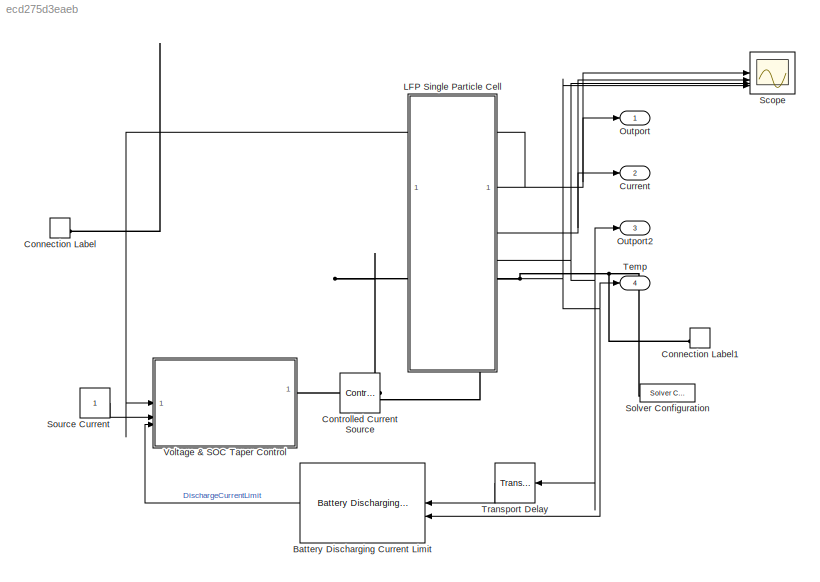
MODEL slx_ecd275d3eaeb
KIND model
CONFIG AbsTol = 1e-6
CONFIG EnableMultiTasking = off
CONFIG FixedStep = 1
CONFIG MaxStep = 1
CONFIG MinStep = auto
CONFIG RelTol = 1e-4
CONFIG SampleTimeConstraint = Unconstrained
CONFIG SolverName = ode15s
CONFIG StartTime = 0.0
CONFIG StopTime = 3600
BLOCK [Reference] Battery Discharging Current Limit  REF=BatteryCurrentManagement/Battery Discharging
Current Limit
  LibrarySourceBlock = batt_sl_lib/Current Management/Battery Discharging\nCurrent Limit
  SourceBlock = BatteryCurrentManagement/Battery Discharging\nCurrent Limit
  SourceType = Battery Discharging Current Limit
BLOCK [ConnectionLabel] Connection Label
  Label = p
BLOCK [ConnectionLabel] Connection Label1
  Label = n
BLOCK [Reference] Controlled Current Source  REF=fl_lib/Electrical/Electrical Sources/Controlled Current
Source
  SourceBlock = fl_lib/Electrical/Electrical Sources/Controlled Current\nSource
  SourceType = Controlled Current\nSource
BLOCK [Outport] Current
  Port = 2
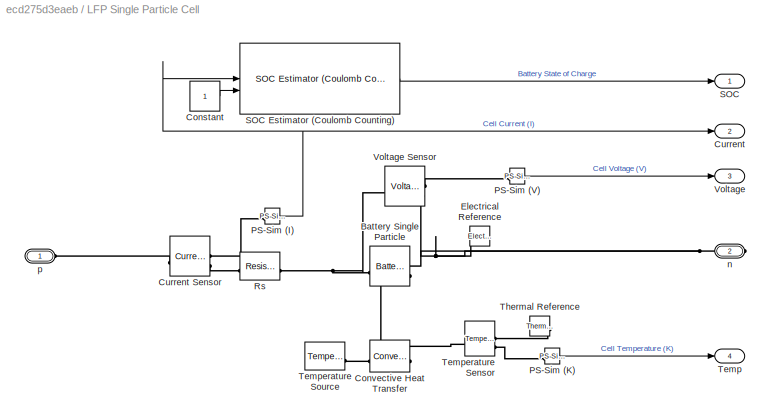
BLOCK [SubSystem] LFP Single Particle Cell
BLOCK [Reference] LFP Single Particle Cell/Battery Single Particle  REF=batt_lib/Cells/Electrochemical/Battery Single
Particle
  NameLocation = top
  SourceBlock = batt_lib/Cells/Electrochemical/Battery Single\nParticle
  SourceType = Battery Single\nParticle
BLOCK [Constant] LFP Single Particle Cell/Constant
BLOCK [Reference] LFP Single Particle Cell/Convective Heat Transfer  REF=fl_lib/Thermal/Thermal Elements/Convective Heat
Transfer
  NameLocation = top
  SourceBlock = fl_lib/Thermal/Thermal Elements/Convective Heat\nTransfer
  SourceType = Convective Heat\nTransfer
BLOCK [Outport] LFP Single Particle Cell/Current
  Port = 2
BLOCK [Reference] LFP Single Particle Cell/Current Sensor  REF=fl_lib/Electrical/Electrical Sensors/Current Sensor
  SourceBlock = fl_lib/Electrical/Electrical Sensors/Current Sensor
  SourceType = Current Sensor
BLOCK [Reference] LFP Single Particle Cell/Electrical Reference  REF=fl_lib/Electrical/Electrical Elements/Electrical Reference
  NameLocation = top
  SourceBlock = fl_lib/Electrical/Electrical Elements/Electrical Reference
  SourceType = Electrical Reference
BLOCK [Reference] LFP Single Particle Cell/PS-Sim (I)  REF=nesl_utility/PS-Simulink
Converter
  SourceBlock = nesl_utility/PS-Simulink\nConverter
  SourceType = PS-Simulink\nConverter
BLOCK [Reference] LFP Single Particle Cell/PS-Sim (K)  REF=nesl_utility/PS-Simulink
Converter
  SourceBlock = nesl_utility/PS-Simulink\nConverter
  SourceType = PS-Simulink\nConverter
BLOCK [Reference] LFP Single Particle Cell/PS-Sim (V)  REF=nesl_utility/PS-Simulink
Converter
  SourceBlock = nesl_utility/PS-Simulink\nConverter
  SourceType = PS-Simulink\nConverter
BLOCK [Reference] LFP Single Particle Cell/Rs  REF=fl_lib/Electrical/Electrical Elements/Resistor
  SourceBlock = fl_lib/Electrical/Electrical Elements/Resistor
  SourceType = Resistor
BLOCK [Outport] LFP Single Particle Cell/SOC
BLOCK [Reference] LFP Single Particle Cell/SOC Estimator (Coulomb Counting)  REF=BatteryEstimators/SOC Estimator
(Coulomb Counting)
  LibrarySourceBlock = batt_sl_lib/Estimators/SOC Estimator\n(Coulomb Counting)
  SourceBlock = BatteryEstimators/SOC Estimator\n(Coulomb Counting)
  SourceType = SOC Estimator (Coulomb Counting)
BLOCK [Outport] LFP Single Particle Cell/Temp
  Port = 4
BLOCK [Reference] LFP Single Particle Cell/Temperature Sensor  REF=fl_lib/Thermal/Thermal Sensors/Temperature Sensor
  SourceBlock = fl_lib/Thermal/Thermal Sensors/Temperature Sensor
  SourceType = Temperature Sensor
BLOCK [Reference] LFP Single Particle Cell/Temperature Source  REF=fl_lib/Thermal/Thermal Sources/Temperature Source
  SourceBlock = fl_lib/Thermal/Thermal Sources/Temperature Source
  SourceType = Temperature Source
BLOCK [Reference] LFP Single Particle Cell/Thermal Reference  REF=fl_lib/Thermal/Thermal Elements/Thermal Reference
  NameLocation = top
  SourceBlock = fl_lib/Thermal/Thermal Elements/Thermal Reference
  SourceType = Thermal Reference
BLOCK [Outport] LFP Single Particle Cell/Voltage
  Port = 3
BLOCK [Reference] LFP Single Particle Cell/Voltage Sensor  REF=fl_lib/Electrical/Electrical Sensors/Voltage Sensor
  NameLocation = top
  SourceBlock = fl_lib/Electrical/Electrical Sensors/Voltage Sensor
  SourceType = Voltage Sensor
BLOCK [PMIOPort] LFP Single Particle Cell/n
  Port = 2
  Side = Right
BLOCK [PMIOPort] LFP Single Particle Cell/p
  Side = Left
BLOCK [Outport] Outport
BLOCK [Outport] Outport2
  Port = 3
BLOCK [Scope] Scope
  Floating = off
  NumInputPorts = 4
  ScopeSpecificationString = Simulink.scopes.TimeScopeBlockCfg('CurrentConfiguration', extmgr.ConfigurationSet(extmgr.Configuration('Core','General UI',true,'FigureColor',[1 1 1]),extmgr.Configuration('Core','Source UI',true),extmgr.Configuration('Sources','WiredSimulink',true,'DataLoggingDecimateData',true,'DataLoggingDecimation','1','SampleTime','1'),extmgr.Configuration('Visuals','Time Domain',true,'SerializedDisplays',{st...<+4251ch>
BLOCK [Reference] Solver Configuration  REF=nesl_utility/Solver
Configuration
  SourceBlock = nesl_utility/Solver\nConfiguration
  SourceType = Solver\nConfiguration
BLOCK [Constant] Source Current
BLOCK [Outport] Temp
  Port = 4
BLOCK [TransportDelay] Transport Delay
  DelayTime = 1e-6
  TransDelayFeedthrough = on
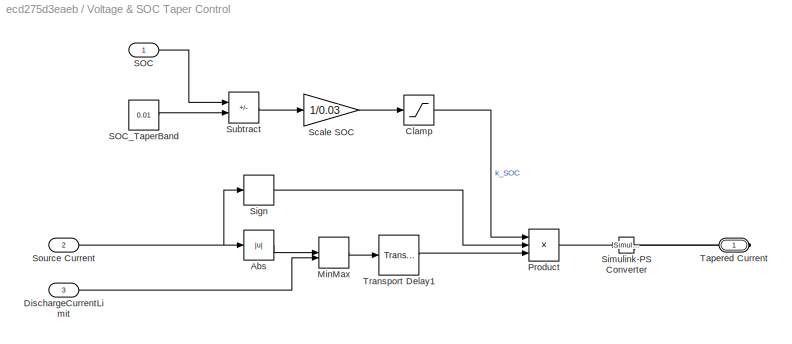
BLOCK [SubSystem] Voltage & SOC Taper Control
BLOCK [Abs] Voltage & SOC Taper Control/Abs
  SaturateOnIntegerOverflow = off
BLOCK [Saturate] Voltage & SOC Taper Control/Clamp
  LowerLimit = 0
  UpperLimit = 1
BLOCK [Inport] Voltage & SOC Taper Control/DischargeCurrentLimit
  Port = 3
BLOCK [MinMax] Voltage & SOC Taper Control/MinMax
  Function = max
  Inputs = 2
BLOCK [Product] Voltage & SOC Taper Control/Product
  Inputs = 3
BLOCK [Inport] Voltage & SOC Taper Control/SOC
BLOCK [Constant] Voltage & SOC Taper Control/SOC_TaperBand
  Value = 0.01
BLOCK [Gain] Voltage & SOC Taper Control/Scale SOC
  Gain = 1/0.03
BLOCK [Signum] Voltage & SOC Taper Control/Sign
BLOCK [Reference] Voltage & SOC Taper Control/Simulink-PS Converter  REF=nesl_utility/Simulink-PS
Converter
  SourceBlock = nesl_utility/Simulink-PS\nConverter
  SourceType = Simulink-PS\nConverter
BLOCK [Inport] Voltage & SOC Taper Control/Source Current
  Port = 2
BLOCK [Sum] Voltage & SOC Taper Control/Subtract
  IconShape = rectangular
  Inputs = +-
BLOCK [PMIOPort] Voltage & SOC Taper Control/Tapered Current
  Side = Right
BLOCK [TransportDelay] Voltage & SOC Taper Control/Transport Delay1
  DelayTime = 1e-6
  TransDelayFeedthrough = on
LINE Battery Discharging Current Limit:1 -> Voltage & SOC Taper Control:3
LINE LFP Single Particle Cell/Constant:1 -> LFP Single Particle Cell/SOC Estimator (Coulomb Counting):2
NET LFP Single Particle Cell/PS-Sim (I):1 -> LFP Single Particle Cell/Current:1, LFP Single Particle Cell/SOC Estimator (Coulomb Counting):1
LINE LFP Single Particle Cell/PS-Sim (K):1 -> LFP Single Particle Cell/Temp:1
LINE LFP Single Particle Cell/PS-Sim (V):1 -> LFP Single Particle Cell/Voltage:1
LINE LFP Single Particle Cell/SOC Estimator (Coulomb Counting):1 -> LFP Single Particle Cell/SOC:1
NET LFP Single Particle Cell:1 -> Outport:1, Scope:1, Voltage & SOC Taper Control:1
NET LFP Single Particle Cell:2 -> Current:1, Scope:2
NET LFP Single Particle Cell:3 -> Outport2:1, Scope:3, Transport Delay:1
NET LFP Single Particle Cell:4 -> Battery Discharging Current Limit:2, Scope:4, Temp:1
LINE Source Current:1 -> Voltage & SOC Taper Control:2
LINE Transport Delay:1 -> Battery Discharging Current Limit:1
LINE Voltage & SOC Taper Control/Abs:1 -> Voltage & SOC Taper Control/MinMax:1
LINE Voltage & SOC Taper Control/Clamp:1 -> Voltage & SOC Taper Control/Product:1
LINE Voltage & SOC Taper Control/DischargeCurrentLimit:1 -> Voltage & SOC Taper Control/MinMax:2
LINE Voltage & SOC Taper Control/MinMax:1 -> Voltage & SOC Taper Control/Transport Delay1:1
LINE Voltage & SOC Taper Control/Product:1 -> Voltage & SOC Taper Control/Simulink-PS Converter:1
LINE Voltage & SOC Taper Control/SOC:1 -> Voltage & SOC Taper Control/Subtract:1
LINE Voltage & SOC Taper Control/SOC_TaperBand:1 -> Voltage & SOC Taper Control/Subtract:2
LINE Voltage & SOC Taper Control/Scale SOC:1 -> Voltage & SOC Taper Control/Clamp:1
LINE Voltage & SOC Taper Control/Sign:1 -> Voltage & SOC Taper Control/Product:2
NET Voltage & SOC Taper Control/Source Current:1 -> Voltage & SOC Taper Control/Abs:1, Voltage & SOC Taper Control/Sign:1
LINE Voltage & SOC Taper Control/Subtract:1 -> Voltage & SOC Taper Control/Scale SOC:1
LINE Voltage & SOC Taper Control/Transport Delay1:1 -> Voltage & SOC Taper Control/Product:3
PNET net1: Connection Label1:LConn1 -- Controlled Current Source:LConn1 -- LFP Single Particle Cell:RConn1 -- Solver Configuration:RConn1
PNET net2: Connection Label:LConn1 -- Controlled Current Source:RConn2 -- LFP Single Particle Cell:LConn1
PLINE Controlled Current Source:RConn1 -- Voltage & SOC Taper Control:RConn1
PNET net3: LFP Single Particle Cell/Battery Single Particle:LConn1 -- LFP Single Particle Cell/Rs:LConn1 -- LFP Single Particle Cell/Voltage Sensor:LConn1
PNET net4: LFP Single Particle Cell/Battery Single Particle:RConn1 -- LFP Single Particle Cell/Electrical Reference:LConn1 -- LFP Single Particle Cell/Voltage Sensor:RConn2 -- LFP Single Particle Cell/n:RConn1
PNET net5: LFP Single Particle Cell/Battery Single Particle:RConn2 -- LFP Single Particle Cell/Convective Heat Transfer:LConn1 -- LFP Single Particle Cell/Temperature Sensor:LConn1
PLINE LFP Single Particle Cell/Convective Heat Transfer:RConn1 -- LFP Single Particle Cell/Temperature Source:LConn1
PLINE LFP Single Particle Cell/Current Sensor:LConn1 -- LFP Single Particle Cell/p:RConn1
PLINE LFP Single Particle Cell/Current Sensor:RConn1 -- LFP Single Particle Cell/PS-Sim (I):LConn1
PLINE LFP Single Particle Cell/Current Sensor:RConn2 -- LFP Single Particle Cell/Rs:RConn1
PLINE LFP Single Particle Cell/PS-Sim (K):LConn1 -- LFP Single Particle Cell/Temperature Sensor:RConn2
PLINE LFP Single Particle Cell/PS-Sim (V):LConn1 -- LFP Single Particle Cell/Voltage Sensor:RConn1
PLINE LFP Single Particle Cell/Temperature Sensor:RConn1 -- LFP Single Particle Cell/Thermal Reference:LConn1
PLINE Voltage & SOC Taper Control/Simulink-PS Converter:RConn1 -- Voltage & SOC Taper Control/Tapered Current:RConn1
note: NET lines group one-source signal fan-out (src -> all destinations, sorted); 1:1 wires keep LINE; PNET lines group multi-terminal physical nets as a canonical sorted terminal list (undirected conserving connections); 2-terminal nets keep the pairwise PLINE form
